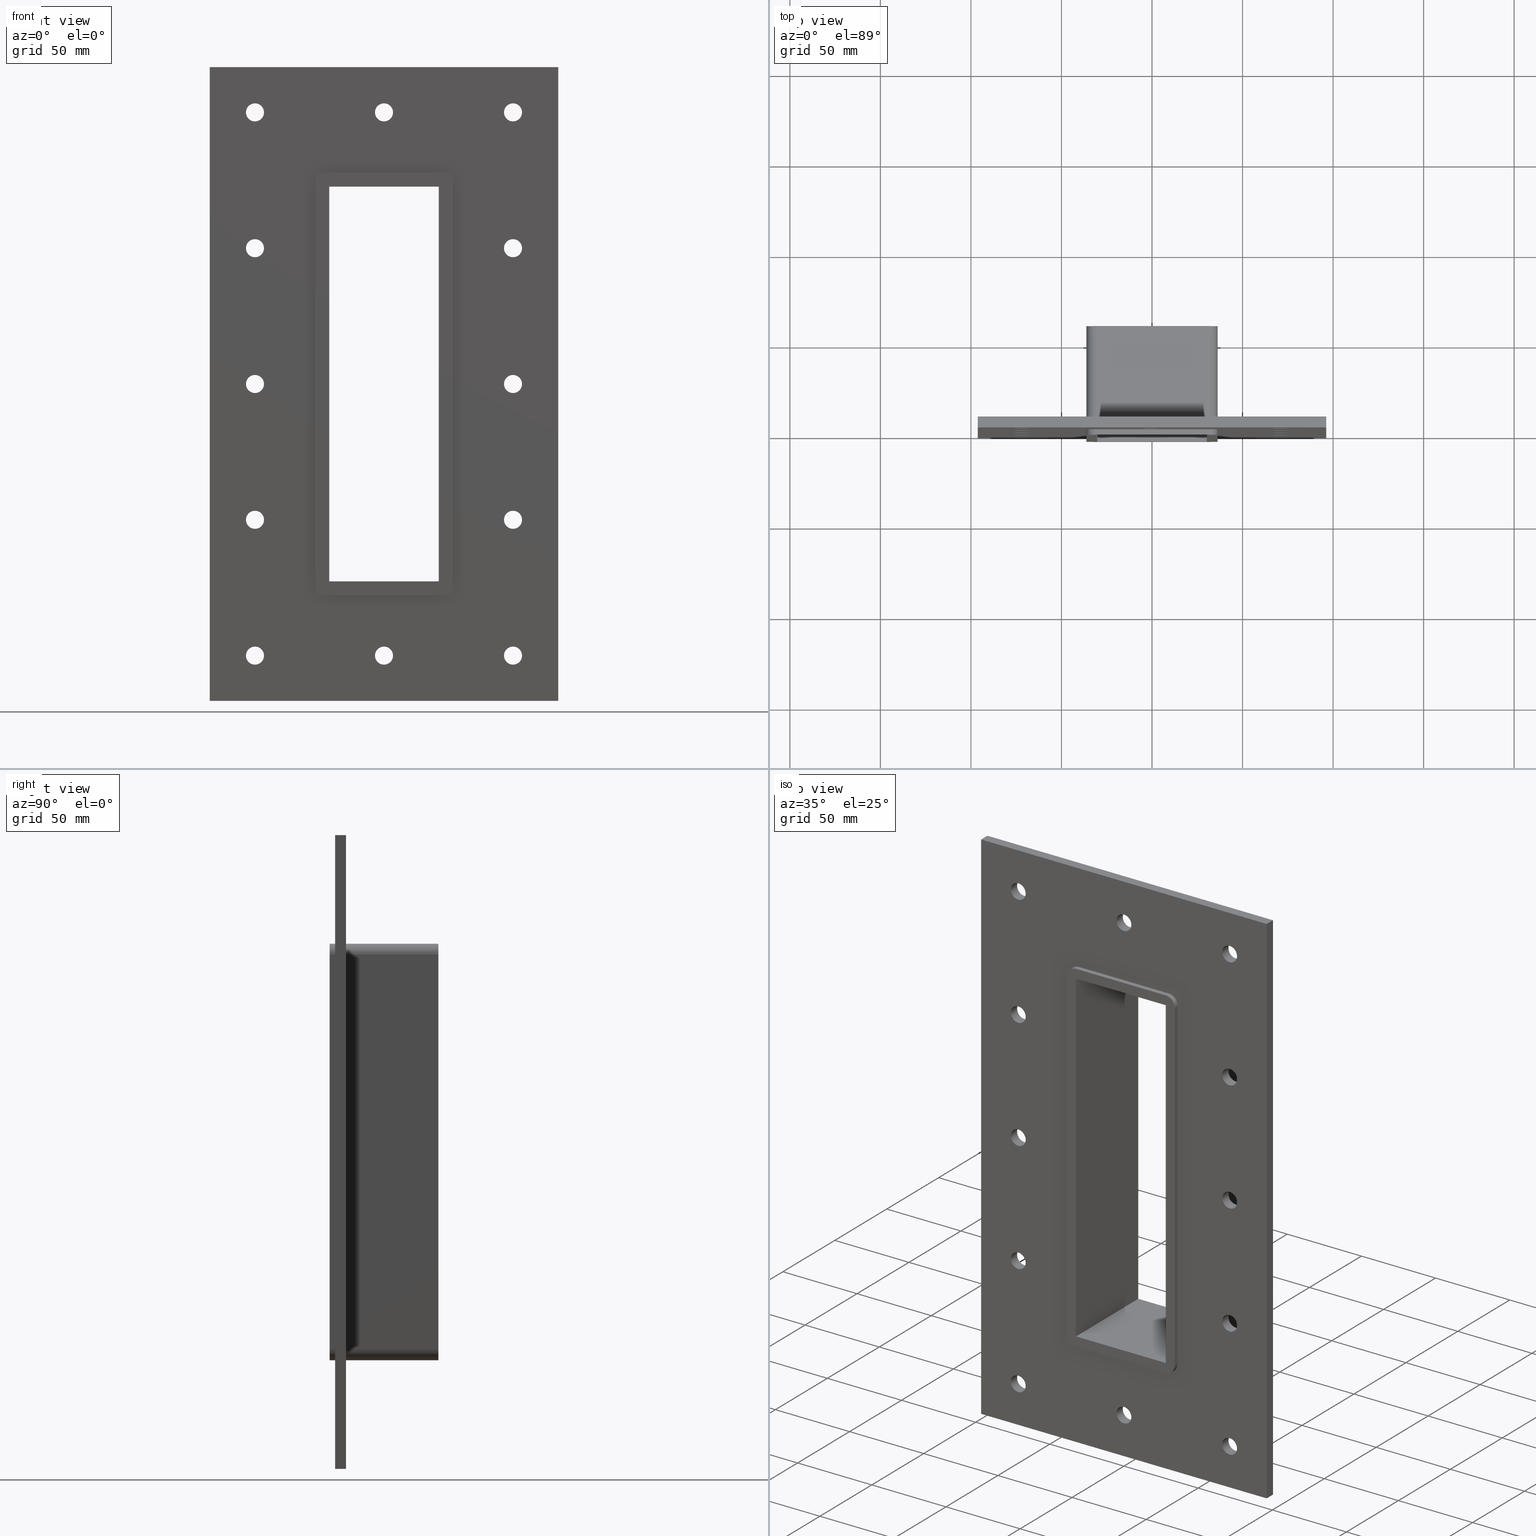
[diagram: canonical four-view strip — front | top / right | iso, engineering-drawing reading convention]
A machine part, canonical four-view strip (front | top / right | iso — engineering-drawing reading convention). The complete STEP part file that produces these views, byte-faithful:
ISO-10303-21;
HEADER;
/****************************************************************
 * Generated by software with PDElib inside                    *
 * PDElib Version v51a, created Wed 11/30/2011                  *
 * ITI Transcendata (http://www.transcendata.com/)              *
 ****************************************************************/
FILE_DESCRIPTION((''),'2;1');
FILE_NAME('L:\\roxtec-se\\Projects\\Ongoing_Projects\\12403 Transit Designer\\Product-data\\Product Data\\Transit designer Cad Generator\\CreatedFiles\\STEP\\GBEX5X1.stp','2015-02-17T15:00:34',(''),(''),'Autodesk Inventor 2013','Autodesk Inventor 2013','');
FILE_SCHEMA(('AUTOMOTIVE_DESIGN { 1 0 10303 214 1 1 1 1 }'));
ENDSEC;
DATA;
#5=APPLICATION_CONTEXT('automotive design');
#6=APPLICATION_PROTOCOL_DEFINITION('International Standard','automotive_design',2001,#5);
#7=PRODUCT_CONTEXT('',#5,'mechanical');
#8=PRODUCT('G B Ex','G B Ex',$,(#7));
#9=PRODUCT_RELATED_PRODUCT_CATEGORY('part',$,(#8));
#10=PRODUCT_DEFINITION_FORMATION('',$,#8);
#11=PRODUCT_DEFINITION_CONTEXT('part definition',#5,'design');
#12=PRODUCT_DEFINITION('',$,#10,#11);
#18=(NAMED_UNIT(*)PLANE_ANGLE_UNIT()SI_UNIT($,.RADIAN.));
#19=DIMENSIONAL_EXPONENTS(0.0,0.0,0.0,0.0,0.0,0.0,0.0);
#20=PLANE_ANGLE_MEASURE_WITH_UNIT(PLANE_ANGLE_MEASURE(0.0174532925),#18);
#24=(CONVERSION_BASED_UNIT('DEGREE',#20)NAMED_UNIT(#19)PLANE_ANGLE_UNIT());
#28=(NAMED_UNIT(*)SI_UNIT($,.STERADIAN.)SOLID_ANGLE_UNIT());
#32=(LENGTH_UNIT()NAMED_UNIT(*)SI_UNIT(.MILLI.,.METRE.));
#34=UNCERTAINTY_MEASURE_WITH_UNIT(LENGTH_MEASURE(0.01),#32,'DISTANCE_ACCURACY_VALUE','');
#36=(GEOMETRIC_REPRESENTATION_CONTEXT(3)GLOBAL_UNCERTAINTY_ASSIGNED_CONTEXT((#34))GLOBAL_UNIT_ASSIGNED_CONTEXT((#24,#28,#32))REPRESENTATION_CONTEXT('None','None'));
#37=AXIS2_PLACEMENT_3D('',#38,#39,#40);
#38=CARTESIAN_POINT('',(0.0,0.0,0.0));
#39=DIRECTION('',(0.0,0.0,1.0));
#40=DIRECTION('',(1.0,0.0,0.0));
#41=SHAPE_REPRESENTATION('',(#37),#36);
#42=PRODUCT_DEFINITION_SHAPE('','',#12);
#43=SHAPE_DEFINITION_REPRESENTATION(#42,#41);
#49=(NAMED_UNIT(*)PLANE_ANGLE_UNIT()SI_UNIT($,.RADIAN.));
#50=DIMENSIONAL_EXPONENTS(0.0,0.0,0.0,0.0,0.0,0.0,0.0);
#51=PLANE_ANGLE_MEASURE_WITH_UNIT(PLANE_ANGLE_MEASURE(0.0174532925),#49);
#55=(CONVERSION_BASED_UNIT('DEGREE',#51)NAMED_UNIT(#50)PLANE_ANGLE_UNIT());
#59=(NAMED_UNIT(*)SI_UNIT($,.STERADIAN.)SOLID_ANGLE_UNIT());
#63=(LENGTH_UNIT()NAMED_UNIT(*)SI_UNIT(.MILLI.,.METRE.));
#65=UNCERTAINTY_MEASURE_WITH_UNIT(LENGTH_MEASURE(0.000001),#63,'DISTANCE_ACCURACY_VALUE','');
#67=(GEOMETRIC_REPRESENTATION_CONTEXT(3)GLOBAL_UNCERTAINTY_ASSIGNED_CONTEXT((#65))GLOBAL_UNIT_ASSIGNED_CONTEXT((#55,#59,#63))REPRESENTATION_CONTEXT('','3D'));
#68=CARTESIAN_POINT('',(-71.250000000000114,403.926045211249,-150.0));
#69=DIRECTION('',(0.0,-1.0,0.0));
#70=DIRECTION('',(1.0,0.0,0.0));
#71=AXIS2_PLACEMENT_3D('',#68,#69,#70);
#72=CYLINDRICAL_SURFACE('',#71,5.0);
#73=CARTESIAN_POINT('',(-76.250000000000114,6.000000000000014,-150.0));
#74=VERTEX_POINT('',#73);
#75=CARTESIAN_POINT('',(-71.250000000000114,6.000000000000014,-150.0));
#76=DIRECTION('',(0.0,-1.0,0.0));
#77=DIRECTION('',(1.0,0.0,0.0));
#78=AXIS2_PLACEMENT_3D('',#75,#76,#77);
#79=CIRCLE('',#78,5.0);
#80=EDGE_CURVE('',#74,#74,#79,.T.);
#81=ORIENTED_EDGE('',*,*,#80,.F.);
#82=EDGE_LOOP('',(#81));
#83=FACE_OUTER_BOUND('',#82,.T.);
#84=CARTESIAN_POINT('',(-66.250000000000114,0.0,-150.0));
#85=VERTEX_POINT('',#84);
#86=CARTESIAN_POINT('',(-71.250000000000114,0.0,-150.0));
#87=DIRECTION('',(0.0,1.0,0.0));
#88=DIRECTION('',(1.0,0.0,0.0));
#89=AXIS2_PLACEMENT_3D('',#86,#87,#88);
#90=CIRCLE('',#89,5.0);
#91=EDGE_CURVE('',#85,#85,#90,.T.);
#92=ORIENTED_EDGE('',*,*,#91,.F.);
#93=EDGE_LOOP('',(#92));
#94=FACE_BOUND('',#93,.T.);
#95=ADVANCED_FACE('',(#83,#94),#72,.F.);
#96=CARTESIAN_POINT('',(71.249999999999886,403.926045211249,-75.0));
#97=DIRECTION('',(0.0,-1.0,0.0));
#98=DIRECTION('',(1.0,0.0,0.0));
#99=AXIS2_PLACEMENT_3D('',#96,#97,#98);
#100=CYLINDRICAL_SURFACE('',#99,5.0);
#101=CARTESIAN_POINT('',(66.249999999999886,6.000000000000014,-75.0));
#102=VERTEX_POINT('',#101);
#103=CARTESIAN_POINT('',(71.249999999999886,6.000000000000014,-75.0));
#104=DIRECTION('',(0.0,-1.0,0.0));
#105=DIRECTION('',(1.0,0.0,0.0));
#106=AXIS2_PLACEMENT_3D('',#103,#104,#105);
#107=CIRCLE('',#106,5.0);
#108=EDGE_CURVE('',#102,#102,#107,.T.);
#109=ORIENTED_EDGE('',*,*,#108,.F.);
#110=EDGE_LOOP('',(#109));
#111=FACE_OUTER_BOUND('',#110,.T.);
#112=CARTESIAN_POINT('',(76.249999999999886,0.0,-75.0));
#113=VERTEX_POINT('',#112);
#114=CARTESIAN_POINT('',(71.249999999999886,0.0,-75.0));
#115=DIRECTION('',(0.0,1.0,0.0));
#116=DIRECTION('',(1.0,0.0,0.0));
#117=AXIS2_PLACEMENT_3D('',#114,#115,#116);
#118=CIRCLE('',#117,5.0);
#119=EDGE_CURVE('',#113,#113,#118,.T.);
#120=ORIENTED_EDGE('',*,*,#119,.F.);
#121=EDGE_LOOP('',(#120));
#122=FACE_BOUND('',#121,.T.);
#123=ADVANCED_FACE('',(#111,#122),#100,.F.);
#124=CARTESIAN_POINT('',(-71.250000000000114,403.926045211249,-75.0));
#125=DIRECTION('',(0.0,-1.0,0.0));
#126=DIRECTION('',(1.0,0.0,0.0));
#127=AXIS2_PLACEMENT_3D('',#124,#125,#126);
#128=CYLINDRICAL_SURFACE('',#127,5.0);
#129=CARTESIAN_POINT('',(-76.250000000000114,6.000000000000014,-75.0));
#130=VERTEX_POINT('',#129);
#131=CARTESIAN_POINT('',(-71.250000000000114,6.000000000000014,-75.0));
#132=DIRECTION('',(0.0,-1.0,0.0));
#133=DIRECTION('',(1.0,0.0,0.0));
#134=AXIS2_PLACEMENT_3D('',#131,#132,#133);
#135=CIRCLE('',#134,5.0);
#136=EDGE_CURVE('',#130,#130,#135,.T.);
#137=ORIENTED_EDGE('',*,*,#136,.F.);
#138=EDGE_LOOP('',(#137));
#139=FACE_OUTER_BOUND('',#138,.T.);
#140=CARTESIAN_POINT('',(-66.250000000000114,0.0,-75.0));
#141=VERTEX_POINT('',#140);
#142=CARTESIAN_POINT('',(-71.250000000000114,0.0,-75.0));
#143=DIRECTION('',(0.0,1.0,0.0));
#144=DIRECTION('',(1.0,0.0,0.0));
#145=AXIS2_PLACEMENT_3D('',#142,#143,#144);
#146=CIRCLE('',#145,5.0);
#147=EDGE_CURVE('',#141,#141,#146,.T.);
#148=ORIENTED_EDGE('',*,*,#147,.F.);
#149=EDGE_LOOP('',(#148));
#150=FACE_BOUND('',#149,.T.);
#151=ADVANCED_FACE('',(#139,#150),#128,.F.);
#152=CARTESIAN_POINT('',(71.249999999999886,403.926045211249,0.0));
#153=DIRECTION('',(0.0,-1.0,0.0));
#154=DIRECTION('',(1.0,0.0,0.0));
#155=AXIS2_PLACEMENT_3D('',#152,#153,#154);
#156=CYLINDRICAL_SURFACE('',#155,5.0);
#157=CARTESIAN_POINT('',(66.249999999999886,6.000000000000014,0.0));
#158=VERTEX_POINT('',#157);
#159=CARTESIAN_POINT('',(71.249999999999886,6.000000000000014,0.0));
#160=DIRECTION('',(0.0,-1.0,0.0));
#161=DIRECTION('',(1.0,0.0,0.0));
#162=AXIS2_PLACEMENT_3D('',#159,#160,#161);
#163=CIRCLE('',#162,5.0);
#164=EDGE_CURVE('',#158,#158,#163,.T.);
#165=ORIENTED_EDGE('',*,*,#164,.F.);
#166=EDGE_LOOP('',(#165));
#167=FACE_OUTER_BOUND('',#166,.T.);
#168=CARTESIAN_POINT('',(76.249999999999886,0.0,0.0));
#169=VERTEX_POINT('',#168);
#170=CARTESIAN_POINT('',(71.249999999999886,0.0,0.0));
#171=DIRECTION('',(0.0,1.0,0.0));
#172=DIRECTION('',(1.0,0.0,0.0));
#173=AXIS2_PLACEMENT_3D('',#170,#171,#172);
#174=CIRCLE('',#173,5.0);
#175=EDGE_CURVE('',#169,#169,#174,.T.);
#176=ORIENTED_EDGE('',*,*,#175,.F.);
#177=EDGE_LOOP('',(#176));
#178=FACE_BOUND('',#177,.T.);
#179=ADVANCED_FACE('',(#167,#178),#156,.F.);
#180=CARTESIAN_POINT('',(-71.250000000000114,403.926045211249,0.0));
#181=DIRECTION('',(0.0,-1.0,0.0));
#182=DIRECTION('',(1.0,0.0,0.0));
#183=AXIS2_PLACEMENT_3D('',#180,#181,#182);
#184=CYLINDRICAL_SURFACE('',#183,5.0);
#185=CARTESIAN_POINT('',(-76.250000000000114,6.000000000000014,0.0));
#186=VERTEX_POINT('',#185);
#187=CARTESIAN_POINT('',(-71.250000000000114,6.000000000000014,0.0));
#188=DIRECTION('',(0.0,-1.0,0.0));
#189=DIRECTION('',(1.0,0.0,0.0));
#190=AXIS2_PLACEMENT_3D('',#187,#188,#189);
#191=CIRCLE('',#190,5.0);
#192=EDGE_CURVE('',#186,#186,#191,.T.);
#193=ORIENTED_EDGE('',*,*,#192,.F.);
#194=EDGE_LOOP('',(#193));
#195=FACE_OUTER_BOUND('',#194,.T.);
#196=CARTESIAN_POINT('',(-66.250000000000114,0.0,0.0));
#197=VERTEX_POINT('',#196);
#198=CARTESIAN_POINT('',(-71.250000000000114,0.0,0.0));
#199=DIRECTION('',(0.0,1.0,0.0));
#200=DIRECTION('',(1.0,0.0,0.0));
#201=AXIS2_PLACEMENT_3D('',#198,#199,#200);
#202=CIRCLE('',#201,5.0);
#203=EDGE_CURVE('',#197,#197,#202,.T.);
#204=ORIENTED_EDGE('',*,*,#203,.F.);
#205=EDGE_LOOP('',(#204));
#206=FACE_BOUND('',#205,.T.);
#207=ADVANCED_FACE('',(#195,#206),#184,.F.);
#208=CARTESIAN_POINT('',(71.249999999999886,403.926045211249,75.0));
#209=DIRECTION('',(0.0,-1.0,0.0));
#210=DIRECTION('',(1.0,0.0,0.0));
#211=AXIS2_PLACEMENT_3D('',#208,#209,#210);
#212=CYLINDRICAL_SURFACE('',#211,5.0);
#213=CARTESIAN_POINT('',(66.249999999999886,6.000000000000014,75.0));
#214=VERTEX_POINT('',#213);
#215=CARTESIAN_POINT('',(71.249999999999886,6.000000000000014,75.0));
#216=DIRECTION('',(0.0,-1.0,0.0));
#217=DIRECTION('',(1.0,0.0,0.0));
#218=AXIS2_PLACEMENT_3D('',#215,#216,#217);
#219=CIRCLE('',#218,5.0);
#220=EDGE_CURVE('',#214,#214,#219,.T.);
#221=ORIENTED_EDGE('',*,*,#220,.F.);
#222=EDGE_LOOP('',(#221));
#223=FACE_OUTER_BOUND('',#222,.T.);
#224=CARTESIAN_POINT('',(76.249999999999886,0.0,75.0));
#225=VERTEX_POINT('',#224);
#226=CARTESIAN_POINT('',(71.249999999999886,0.0,75.0));
#227=DIRECTION('',(0.0,1.0,0.0));
#228=DIRECTION('',(1.0,0.0,0.0));
#229=AXIS2_PLACEMENT_3D('',#226,#227,#228);
#230=CIRCLE('',#229,5.0);
#231=EDGE_CURVE('',#225,#225,#230,.T.);
#232=ORIENTED_EDGE('',*,*,#231,.F.);
#233=EDGE_LOOP('',(#232));
#234=FACE_BOUND('',#233,.T.);
#235=ADVANCED_FACE('',(#223,#234),#212,.F.);
#236=CARTESIAN_POINT('',(-71.250000000000114,403.926045211249,75.0));
#237=DIRECTION('',(0.0,-1.0,0.0));
#238=DIRECTION('',(1.0,0.0,0.0));
#239=AXIS2_PLACEMENT_3D('',#236,#237,#238);
#240=CYLINDRICAL_SURFACE('',#239,5.0);
#241=CARTESIAN_POINT('',(-76.250000000000114,6.000000000000014,75.0));
#242=VERTEX_POINT('',#241);
#243=CARTESIAN_POINT('',(-71.250000000000114,6.000000000000014,75.0));
#244=DIRECTION('',(0.0,-1.0,0.0));
#245=DIRECTION('',(1.0,0.0,0.0));
#246=AXIS2_PLACEMENT_3D('',#243,#244,#245);
#247=CIRCLE('',#246,5.0);
#248=EDGE_CURVE('',#242,#242,#247,.T.);
#249=ORIENTED_EDGE('',*,*,#248,.F.);
#250=EDGE_LOOP('',(#249));
#251=FACE_OUTER_BOUND('',#250,.T.);
#252=CARTESIAN_POINT('',(-66.250000000000114,0.0,75.0));
#253=VERTEX_POINT('',#252);
#254=CARTESIAN_POINT('',(-71.250000000000114,0.0,75.0));
#255=DIRECTION('',(0.0,1.0,0.0));
#256=DIRECTION('',(1.0,0.0,0.0));
#257=AXIS2_PLACEMENT_3D('',#254,#255,#256);
#258=CIRCLE('',#257,5.0);
#259=EDGE_CURVE('',#253,#253,#258,.T.);
#260=ORIENTED_EDGE('',*,*,#259,.F.);
#261=EDGE_LOOP('',(#260));
#262=FACE_BOUND('',#261,.T.);
#263=ADVANCED_FACE('',(#251,#262),#240,.F.);
#264=CARTESIAN_POINT('',(-1.154632E-013,403.926045211249,150.0));
#265=DIRECTION('',(0.0,-1.0,0.0));
#266=DIRECTION('',(1.0,0.0,0.0));
#267=AXIS2_PLACEMENT_3D('',#264,#265,#266);
#268=CYLINDRICAL_SURFACE('',#267,5.0);
#269=CARTESIAN_POINT('',(-5.000000000000116,6.000000000000014,150.0));
#270=VERTEX_POINT('',#269);
#271=CARTESIAN_POINT('',(-1.154632E-013,6.000000000000014,150.0));
#272=DIRECTION('',(0.0,-1.0,0.0));
#273=DIRECTION('',(1.0,0.0,0.0));
#274=AXIS2_PLACEMENT_3D('',#271,#272,#273);
#275=CIRCLE('',#274,5.0);
#276=EDGE_CURVE('',#270,#270,#275,.T.);
#277=ORIENTED_EDGE('',*,*,#276,.F.);
#278=EDGE_LOOP('',(#277));
#279=FACE_OUTER_BOUND('',#278,.T.);
#280=CARTESIAN_POINT('',(4.999999999999885,0.0,150.0));
#281=VERTEX_POINT('',#280);
#282=CARTESIAN_POINT('',(-1.154632E-013,0.0,150.0));
#283=DIRECTION('',(0.0,1.0,0.0));
#284=DIRECTION('',(1.0,0.0,0.0));
#285=AXIS2_PLACEMENT_3D('',#282,#283,#284);
#286=CIRCLE('',#285,5.0);
#287=EDGE_CURVE('',#281,#281,#286,.T.);
#288=ORIENTED_EDGE('',*,*,#287,.F.);
#289=EDGE_LOOP('',(#288));
#290=FACE_BOUND('',#289,.T.);
#291=ADVANCED_FACE('',(#279,#290),#268,.F.);
#292=CARTESIAN_POINT('',(-1.154632E-013,403.926045211249,-150.0));
#293=DIRECTION('',(0.0,-1.0,0.0));
#294=DIRECTION('',(1.0,0.0,0.0));
#295=AXIS2_PLACEMENT_3D('',#292,#293,#294);
#296=CYLINDRICAL_SURFACE('',#295,5.0);
#297=CARTESIAN_POINT('',(-5.000000000000116,6.000000000000014,-150.0));
#298=VERTEX_POINT('',#297);
#299=CARTESIAN_POINT('',(-1.154632E-013,6.000000000000014,-150.0));
#300=DIRECTION('',(0.0,-1.0,0.0));
#301=DIRECTION('',(1.0,0.0,0.0));
#302=AXIS2_PLACEMENT_3D('',#299,#300,#301);
#303=CIRCLE('',#302,5.0);
#304=EDGE_CURVE('',#298,#298,#303,.T.);
#305=ORIENTED_EDGE('',*,*,#304,.F.);
#306=EDGE_LOOP('',(#305));
#307=FACE_OUTER_BOUND('',#306,.T.);
#308=CARTESIAN_POINT('',(4.999999999999885,0.0,-150.0));
#309=VERTEX_POINT('',#308);
#310=CARTESIAN_POINT('',(-1.154632E-013,0.0,-150.0));
#311=DIRECTION('',(0.0,1.0,0.0));
#312=DIRECTION('',(1.0,0.0,0.0));
#313=AXIS2_PLACEMENT_3D('',#310,#311,#312);
#314=CIRCLE('',#313,5.0);
#315=EDGE_CURVE('',#309,#309,#314,.T.);
#316=ORIENTED_EDGE('',*,*,#315,.F.);
#317=EDGE_LOOP('',(#316));
#318=FACE_BOUND('',#317,.T.);
#319=ADVANCED_FACE('',(#307,#318),#296,.F.);
#320=CARTESIAN_POINT('',(71.249999999999886,403.926045211249,-150.0));
#321=DIRECTION('',(0.0,-1.0,0.0));
#322=DIRECTION('',(1.0,0.0,0.0));
#323=AXIS2_PLACEMENT_3D('',#320,#321,#322);
#324=CYLINDRICAL_SURFACE('',#323,5.0);
#325=CARTESIAN_POINT('',(66.249999999999886,6.000000000000014,-150.0));
#326=VERTEX_POINT('',#325);
#327=CARTESIAN_POINT('',(71.249999999999886,6.000000000000014,-150.0));
#328=DIRECTION('',(0.0,-1.0,0.0));
#329=DIRECTION('',(1.0,0.0,0.0));
#330=AXIS2_PLACEMENT_3D('',#327,#328,#329);
#331=CIRCLE('',#330,5.0);
#332=EDGE_CURVE('',#326,#326,#331,.T.);
#333=ORIENTED_EDGE('',*,*,#332,.F.);
#334=EDGE_LOOP('',(#333));
#335=FACE_OUTER_BOUND('',#334,.T.);
#336=CARTESIAN_POINT('',(76.249999999999886,0.0,-150.0));
#337=VERTEX_POINT('',#336);
#338=CARTESIAN_POINT('',(71.249999999999886,0.0,-150.0));
#339=DIRECTION('',(0.0,1.0,0.0));
#340=DIRECTION('',(1.0,0.0,0.0));
#341=AXIS2_PLACEMENT_3D('',#338,#339,#340);
#342=CIRCLE('',#341,5.0);
#343=EDGE_CURVE('',#337,#337,#342,.T.);
#344=ORIENTED_EDGE('',*,*,#343,.F.);
#345=EDGE_LOOP('',(#344));
#346=FACE_BOUND('',#345,.T.);
#347=ADVANCED_FACE('',(#335,#346),#324,.F.);
#348=CARTESIAN_POINT('',(-71.250000000000114,403.926045211249,150.0));
#349=DIRECTION('',(0.0,-1.0,0.0));
#350=DIRECTION('',(1.0,0.0,0.0));
#351=AXIS2_PLACEMENT_3D('',#348,#349,#350);
#352=CYLINDRICAL_SURFACE('',#351,5.0);
#353=CARTESIAN_POINT('',(-76.250000000000114,6.000000000000014,150.0));
#354=VERTEX_POINT('',#353);
#355=CARTESIAN_POINT('',(-71.250000000000114,6.000000000000014,150.0));
#356=DIRECTION('',(0.0,-1.0,0.0));
#357=DIRECTION('',(1.0,0.0,0.0));
#358=AXIS2_PLACEMENT_3D('',#355,#356,#357);
#359=CIRCLE('',#358,5.0);
#360=EDGE_CURVE('',#354,#354,#359,.T.);
#361=ORIENTED_EDGE('',*,*,#360,.F.);
#362=EDGE_LOOP('',(#361));
#363=FACE_OUTER_BOUND('',#362,.T.);
#364=CARTESIAN_POINT('',(-66.250000000000114,0.0,150.0));
#365=VERTEX_POINT('',#364);
#366=CARTESIAN_POINT('',(-71.250000000000114,0.0,150.0));
#367=DIRECTION('',(0.0,1.0,0.0));
#368=DIRECTION('',(1.0,0.0,0.0));
#369=AXIS2_PLACEMENT_3D('',#366,#367,#368);
#370=CIRCLE('',#369,5.0);
#371=EDGE_CURVE('',#365,#365,#370,.T.);
#372=ORIENTED_EDGE('',*,*,#371,.F.);
#373=EDGE_LOOP('',(#372));
#374=FACE_BOUND('',#373,.T.);
#375=ADVANCED_FACE('',(#363,#374),#352,.F.);
#376=CARTESIAN_POINT('',(71.249999999999886,403.926045211249,150.0));
#377=DIRECTION('',(0.0,-1.0,0.0));
#378=DIRECTION('',(1.0,0.0,0.0));
#379=AXIS2_PLACEMENT_3D('',#376,#377,#378);
#380=CYLINDRICAL_SURFACE('',#379,5.0);
#381=CARTESIAN_POINT('',(66.249999999999886,6.000000000000014,150.0));
#382=VERTEX_POINT('',#381);
#383=CARTESIAN_POINT('',(71.249999999999886,6.000000000000014,150.0));
#384=DIRECTION('',(0.0,-1.0,0.0));
#385=DIRECTION('',(1.0,0.0,0.0));
#386=AXIS2_PLACEMENT_3D('',#383,#384,#385);
#387=CIRCLE('',#386,5.0);
#388=EDGE_CURVE('',#382,#382,#387,.T.);
#389=ORIENTED_EDGE('',*,*,#388,.F.);
#390=EDGE_LOOP('',(#389));
#391=FACE_OUTER_BOUND('',#390,.T.);
#392=CARTESIAN_POINT('',(76.249999999999886,0.0,150.0));
#393=VERTEX_POINT('',#392);
#394=CARTESIAN_POINT('',(71.249999999999886,0.0,150.0));
#395=DIRECTION('',(0.0,1.0,0.0));
#396=DIRECTION('',(1.0,0.0,0.0));
#397=AXIS2_PLACEMENT_3D('',#394,#395,#396);
#398=CIRCLE('',#397,5.0);
#399=EDGE_CURVE('',#393,#393,#398,.T.);
#400=ORIENTED_EDGE('',*,*,#399,.F.);
#401=EDGE_LOOP('',(#400));
#402=FACE_BOUND('',#401,.T.);
#403=ADVANCED_FACE('',(#391,#402),#380,.F.);
#404=CARTESIAN_POINT('',(0.0,6.000000000000001,0.0));
#405=DIRECTION('',(0.0,1.0,0.0));
#406=DIRECTION('',(0.0,0.0,1.0));
#407=AXIS2_PLACEMENT_3D('',#404,#405,#406);
#408=PLANE('',#407);
#409=CARTESIAN_POINT('',(-96.25,6.000000000000001,175.0));
#410=VERTEX_POINT('',#409);
#411=CARTESIAN_POINT('',(96.25,6.000000000000001,175.0));
#412=VERTEX_POINT('',#411);
#413=CARTESIAN_POINT('',(-96.25,6.000000000000001,175.0));
#414=DIRECTION('',(1.0,0.0,0.0));
#415=VECTOR('',#414,192.5);
#416=LINE('',#413,#415);
#417=EDGE_CURVE('',#410,#412,#416,.T.);
#418=ORIENTED_EDGE('',*,*,#417,.T.);
#419=CARTESIAN_POINT('',(96.25,6.000000000000001,-175.0));
#420=VERTEX_POINT('',#419);
#421=CARTESIAN_POINT('',(96.25,6.000000000000001,175.0));
#422=DIRECTION('',(0.0,0.0,-1.0));
#423=VECTOR('',#422,350.0);
#424=LINE('',#421,#423);
#425=EDGE_CURVE('',#412,#420,#424,.T.);
#426=ORIENTED_EDGE('',*,*,#425,.T.);
#427=CARTESIAN_POINT('',(-96.25,6.000000000000001,-175.0));
#428=VERTEX_POINT('',#427);
#429=CARTESIAN_POINT('',(96.25,6.000000000000001,-175.0));
#430=DIRECTION('',(-1.0,0.0,0.0));
#431=VECTOR('',#430,192.5);
#432=LINE('',#429,#431);
#433=EDGE_CURVE('',#420,#428,#432,.T.);
#434=ORIENTED_EDGE('',*,*,#433,.T.);
#435=CARTESIAN_POINT('',(-96.25,6.000000000000001,-175.0));
#436=DIRECTION('',(0.0,0.0,1.0));
#437=VECTOR('',#436,350.0);
#438=LINE('',#435,#437);
#439=EDGE_CURVE('',#428,#410,#438,.T.);
#440=ORIENTED_EDGE('',*,*,#439,.T.);
#441=EDGE_LOOP('',(#418,#426,#434,#440));
#442=FACE_OUTER_BOUND('',#441,.T.);
#443=ORIENTED_EDGE('',*,*,#80,.T.);
#444=EDGE_LOOP('',(#443));
#445=FACE_BOUND('',#444,.T.);
#446=ORIENTED_EDGE('',*,*,#108,.T.);
#447=EDGE_LOOP('',(#446));
#448=FACE_BOUND('',#447,.T.);
#449=ORIENTED_EDGE('',*,*,#136,.T.);
#450=EDGE_LOOP('',(#449));
#451=FACE_BOUND('',#450,.T.);
#452=ORIENTED_EDGE('',*,*,#164,.T.);
#453=EDGE_LOOP('',(#452));
#454=FACE_BOUND('',#453,.T.);
#455=ORIENTED_EDGE('',*,*,#192,.T.);
#456=EDGE_LOOP('',(#455));
#457=FACE_BOUND('',#456,.T.);
#458=ORIENTED_EDGE('',*,*,#220,.T.);
#459=EDGE_LOOP('',(#458));
#460=FACE_BOUND('',#459,.T.);
#461=ORIENTED_EDGE('',*,*,#248,.T.);
#462=EDGE_LOOP('',(#461));
#463=FACE_BOUND('',#462,.T.);
#464=ORIENTED_EDGE('',*,*,#276,.T.);
#465=EDGE_LOOP('',(#464));
#466=FACE_BOUND('',#465,.T.);
#467=ORIENTED_EDGE('',*,*,#304,.T.);
#468=EDGE_LOOP('',(#467));
#469=FACE_BOUND('',#468,.T.);
#470=ORIENTED_EDGE('',*,*,#332,.T.);
#471=EDGE_LOOP('',(#470));
#472=FACE_BOUND('',#471,.T.);
#473=ORIENTED_EDGE('',*,*,#360,.T.);
#474=EDGE_LOOP('',(#473));
#475=FACE_BOUND('',#474,.T.);
#476=ORIENTED_EDGE('',*,*,#388,.T.);
#477=EDGE_LOOP('',(#476));
#478=FACE_BOUND('',#477,.T.);
#479=CARTESIAN_POINT('',(-30.250000000000004,6.000000000000001,-115.0));
#480=VERTEX_POINT('',#479);
#481=CARTESIAN_POINT('',(-36.250000000000007,6.000000000000001,-108.99999999999999));
#482=VERTEX_POINT('',#481);
#483=CARTESIAN_POINT('',(-30.250000000000004,6.000000000000001,-108.99999999999999));
#484=DIRECTION('',(0.0,1.0,0.0));
#485=DIRECTION('',(-0.707106781186546,0.0,-0.707106781186549));
#486=AXIS2_PLACEMENT_3D('',#483,#484,#485);
#487=CIRCLE('',#486,6.000000000000001);
#488=EDGE_CURVE('',#480,#482,#487,.T.);
#489=ORIENTED_EDGE('',*,*,#488,.F.);
#490=CARTESIAN_POINT('',(30.250000000000004,6.000000000000001,-115.0));
#491=VERTEX_POINT('',#490);
#492=CARTESIAN_POINT('',(30.250000000000007,6.000000000000001,-115.0));
#493=DIRECTION('',(-1.0,0.0,0.0));
#494=VECTOR('',#493,60.5);
#495=LINE('',#492,#494);
#496=EDGE_CURVE('',#491,#480,#495,.T.);
#497=ORIENTED_EDGE('',*,*,#496,.F.);
#498=CARTESIAN_POINT('',(36.250000000000007,6.000000000000001,-108.99999999999999));
#499=VERTEX_POINT('',#498);
#500=CARTESIAN_POINT('',(30.250000000000004,6.000000000000001,-108.99999999999999));
#501=DIRECTION('',(0.0,1.0,0.0));
#502=DIRECTION('',(0.707106781186546,0.0,-0.707106781186549));
#503=AXIS2_PLACEMENT_3D('',#500,#501,#502);
#504=CIRCLE('',#503,6.000000000000001);
#505=EDGE_CURVE('',#499,#491,#504,.T.);
#506=ORIENTED_EDGE('',*,*,#505,.F.);
#507=CARTESIAN_POINT('',(36.250000000000007,6.000000000000001,109.0));
#508=VERTEX_POINT('',#507);
#509=CARTESIAN_POINT('',(36.250000000000007,6.000000000000001,109.0));
#510=DIRECTION('',(0.0,0.0,-1.0));
#511=VECTOR('',#510,218.0);
#512=LINE('',#509,#511);
#513=EDGE_CURVE('',#508,#499,#512,.T.);
#514=ORIENTED_EDGE('',*,*,#513,.F.);
#515=CARTESIAN_POINT('',(30.250000000000004,6.000000000000001,115.0));
#516=VERTEX_POINT('',#515);
#517=CARTESIAN_POINT('',(30.250000000000004,6.000000000000001,109.0));
#518=DIRECTION('',(0.0,1.0,0.0));
#519=DIRECTION('',(0.707106781186548,0.0,0.707106781186547));
#520=AXIS2_PLACEMENT_3D('',#517,#518,#519);
#521=CIRCLE('',#520,6.0);
#522=EDGE_CURVE('',#516,#508,#521,.T.);
#523=ORIENTED_EDGE('',*,*,#522,.F.);
#524=CARTESIAN_POINT('',(-30.250000000000004,6.000000000000001,115.0));
#525=VERTEX_POINT('',#524);
#526=CARTESIAN_POINT('',(-30.250000000000007,6.000000000000001,115.0));
#527=DIRECTION('',(1.0,0.0,0.0));
#528=VECTOR('',#527,60.5);
#529=LINE('',#526,#528);
#530=EDGE_CURVE('',#525,#516,#529,.T.);
#531=ORIENTED_EDGE('',*,*,#530,.F.);
#532=CARTESIAN_POINT('',(-36.250000000000007,6.000000000000001,108.99999999999999));
#533=VERTEX_POINT('',#532);
#534=CARTESIAN_POINT('',(-30.250000000000004,6.000000000000001,108.99999999999999));
#535=DIRECTION('',(0.0,1.0,0.0));
#536=DIRECTION('',(-0.707106781186546,0.0,0.707106781186549));
#537=AXIS2_PLACEMENT_3D('',#534,#535,#536);
#538=CIRCLE('',#537,6.000000000000001);
#539=EDGE_CURVE('',#533,#525,#538,.T.);
#540=ORIENTED_EDGE('',*,*,#539,.F.);
#541=CARTESIAN_POINT('',(-36.250000000000007,6.000000000000001,-108.99999999999999));
#542=DIRECTION('',(0.0,0.0,1.0));
#543=VECTOR('',#542,218.0);
#544=LINE('',#541,#543);
#545=EDGE_CURVE('',#482,#533,#544,.T.);
#546=ORIENTED_EDGE('',*,*,#545,.F.);
#547=EDGE_LOOP('',(#489,#497,#506,#514,#523,#531,#540,#546));
#548=FACE_BOUND('',#547,.T.);
#549=ADVANCED_FACE('',(#442,#445,#448,#451,#454,#457,#460,#463,#466,#469,#472,#475,#478,#548),#408,.T.);
#550=CARTESIAN_POINT('',(0.0,0.0,0.0));
#551=DIRECTION('',(0.0,1.0,0.0));
#552=DIRECTION('',(0.0,0.0,1.0));
#553=AXIS2_PLACEMENT_3D('',#550,#551,#552);
#554=PLANE('',#553);
#555=CARTESIAN_POINT('',(-96.25,0.0,175.0));
#556=VERTEX_POINT('',#555);
#557=CARTESIAN_POINT('',(96.25,0.0,175.0));
#558=VERTEX_POINT('',#557);
#559=CARTESIAN_POINT('',(-96.25,0.0,175.0));
#560=DIRECTION('',(1.0,0.0,0.0));
#561=VECTOR('',#560,192.5);
#562=LINE('',#559,#561);
#563=EDGE_CURVE('',#556,#558,#562,.T.);
#564=ORIENTED_EDGE('',*,*,#563,.F.);
#565=CARTESIAN_POINT('',(-96.25,0.0,-175.0));
#566=VERTEX_POINT('',#565);
#567=CARTESIAN_POINT('',(-96.25,0.0,-175.0));
#568=DIRECTION('',(0.0,0.0,1.0));
#569=VECTOR('',#568,350.0);
#570=LINE('',#567,#569);
#571=EDGE_CURVE('',#566,#556,#570,.T.);
#572=ORIENTED_EDGE('',*,*,#571,.F.);
#573=CARTESIAN_POINT('',(96.25,0.0,-175.0));
#574=VERTEX_POINT('',#573);
#575=CARTESIAN_POINT('',(96.25,0.0,-175.0));
#576=DIRECTION('',(-1.0,0.0,0.0));
#577=VECTOR('',#576,192.5);
#578=LINE('',#575,#577);
#579=EDGE_CURVE('',#574,#566,#578,.T.);
#580=ORIENTED_EDGE('',*,*,#579,.F.);
#581=CARTESIAN_POINT('',(96.25,0.0,175.0));
#582=DIRECTION('',(0.0,0.0,-1.0));
#583=VECTOR('',#582,350.0);
#584=LINE('',#581,#583);
#585=EDGE_CURVE('',#558,#574,#584,.T.);
#586=ORIENTED_EDGE('',*,*,#585,.F.);
#587=EDGE_LOOP('',(#564,#572,#580,#586));
#588=FACE_OUTER_BOUND('',#587,.T.);
#589=ORIENTED_EDGE('',*,*,#91,.T.);
#590=EDGE_LOOP('',(#589));
#591=FACE_BOUND('',#590,.T.);
#592=ORIENTED_EDGE('',*,*,#119,.T.);
#593=EDGE_LOOP('',(#592));
#594=FACE_BOUND('',#593,.T.);
#595=ORIENTED_EDGE('',*,*,#147,.T.);
#596=EDGE_LOOP('',(#595));
#597=FACE_BOUND('',#596,.T.);
#598=ORIENTED_EDGE('',*,*,#175,.T.);
#599=EDGE_LOOP('',(#598));
#600=FACE_BOUND('',#599,.T.);
#601=ORIENTED_EDGE('',*,*,#203,.T.);
#602=EDGE_LOOP('',(#601));
#603=FACE_BOUND('',#602,.T.);
#604=ORIENTED_EDGE('',*,*,#231,.T.);
#605=EDGE_LOOP('',(#604));
#606=FACE_BOUND('',#605,.T.);
#607=ORIENTED_EDGE('',*,*,#259,.T.);
#608=EDGE_LOOP('',(#607));
#609=FACE_BOUND('',#608,.T.);
#610=ORIENTED_EDGE('',*,*,#287,.T.);
#611=EDGE_LOOP('',(#610));
#612=FACE_BOUND('',#611,.T.);
#613=ORIENTED_EDGE('',*,*,#315,.T.);
#614=EDGE_LOOP('',(#613));
#615=FACE_BOUND('',#614,.T.);
#616=ORIENTED_EDGE('',*,*,#343,.T.);
#617=EDGE_LOOP('',(#616));
#618=FACE_BOUND('',#617,.T.);
#619=ORIENTED_EDGE('',*,*,#371,.T.);
#620=EDGE_LOOP('',(#619));
#621=FACE_BOUND('',#620,.T.);
#622=ORIENTED_EDGE('',*,*,#399,.T.);
#623=EDGE_LOOP('',(#622));
#624=FACE_BOUND('',#623,.T.);
#625=CARTESIAN_POINT('',(-36.250000000000007,0.0,-108.99999999999999));
#626=VERTEX_POINT('',#625);
#627=CARTESIAN_POINT('',(-30.250000000000004,0.0,-115.0));
#628=VERTEX_POINT('',#627);
#629=CARTESIAN_POINT('',(-30.250000000000004,0.0,-108.99999999999999));
#630=DIRECTION('',(0.0,-1.0,0.0));
#631=DIRECTION('',(-0.707106781186546,0.0,-0.707106781186549));
#632=AXIS2_PLACEMENT_3D('',#629,#630,#631);
#633=CIRCLE('',#632,6.000000000000001);
#634=EDGE_CURVE('',#626,#628,#633,.T.);
#635=ORIENTED_EDGE('',*,*,#634,.F.);
#636=CARTESIAN_POINT('',(-36.250000000000007,0.0,108.99999999999999));
#637=VERTEX_POINT('',#636);
#638=CARTESIAN_POINT('',(-36.250000000000007,0.0,109.0));
#639=DIRECTION('',(0.0,0.0,-1.0));
#640=VECTOR('',#639,218.0);
#641=LINE('',#638,#640);
#642=EDGE_CURVE('',#637,#626,#641,.T.);
#643=ORIENTED_EDGE('',*,*,#642,.F.);
#644=CARTESIAN_POINT('',(-30.250000000000004,0.0,115.0));
#645=VERTEX_POINT('',#644);
#646=CARTESIAN_POINT('',(-30.250000000000004,0.0,108.99999999999999));
#647=DIRECTION('',(0.0,-1.0,0.0));
#648=DIRECTION('',(-0.707106781186546,0.0,0.707106781186549));
#649=AXIS2_PLACEMENT_3D('',#646,#647,#648);
#650=CIRCLE('',#649,6.000000000000001);
#651=EDGE_CURVE('',#645,#637,#650,.T.);
#652=ORIENTED_EDGE('',*,*,#651,.F.);
#653=CARTESIAN_POINT('',(30.250000000000004,0.0,115.0));
#654=VERTEX_POINT('',#653);
#655=CARTESIAN_POINT('',(30.249999999999996,0.0,115.0));
#656=DIRECTION('',(-1.0,0.0,0.0));
#657=VECTOR('',#656,60.5);
#658=LINE('',#655,#657);
#659=EDGE_CURVE('',#654,#645,#658,.T.);
#660=ORIENTED_EDGE('',*,*,#659,.F.);
#661=CARTESIAN_POINT('',(36.250000000000007,0.0,109.0));
#662=VERTEX_POINT('',#661);
#663=CARTESIAN_POINT('',(30.250000000000004,0.0,109.0));
#664=DIRECTION('',(0.0,-1.0,0.0));
#665=DIRECTION('',(0.707106781186548,0.0,0.707106781186547));
#666=AXIS2_PLACEMENT_3D('',#663,#664,#665);
#667=CIRCLE('',#666,6.0);
#668=EDGE_CURVE('',#662,#654,#667,.T.);
#669=ORIENTED_EDGE('',*,*,#668,.F.);
#670=CARTESIAN_POINT('',(36.250000000000007,0.0,-108.99999999999999));
#671=VERTEX_POINT('',#670);
#672=CARTESIAN_POINT('',(36.250000000000007,0.0,-109.0));
#673=DIRECTION('',(0.0,0.0,1.0));
#674=VECTOR('',#673,218.0);
#675=LINE('',#672,#674);
#676=EDGE_CURVE('',#671,#662,#675,.T.);
#677=ORIENTED_EDGE('',*,*,#676,.F.);
#678=CARTESIAN_POINT('',(30.250000000000004,0.0,-115.0));
#679=VERTEX_POINT('',#678);
#680=CARTESIAN_POINT('',(30.250000000000004,0.0,-108.99999999999999));
#681=DIRECTION('',(0.0,-1.0,0.0));
#682=DIRECTION('',(0.707106781186546,0.0,-0.707106781186549));
#683=AXIS2_PLACEMENT_3D('',#680,#681,#682);
#684=CIRCLE('',#683,6.000000000000001);
#685=EDGE_CURVE('',#679,#671,#684,.T.);
#686=ORIENTED_EDGE('',*,*,#685,.F.);
#687=CARTESIAN_POINT('',(-30.249999999999996,0.0,-115.0));
#688=DIRECTION('',(1.0,0.0,0.0));
#689=VECTOR('',#688,60.5);
#690=LINE('',#687,#689);
#691=EDGE_CURVE('',#628,#679,#690,.T.);
#692=ORIENTED_EDGE('',*,*,#691,.F.);
#693=EDGE_LOOP('',(#635,#643,#652,#660,#669,#677,#686,#692));
#694=FACE_BOUND('',#693,.T.);
#695=ADVANCED_FACE('',(#588,#591,#594,#597,#600,#603,#606,#609,#612,#615,#618,#621,#624,#694),#554,.F.);
#696=CARTESIAN_POINT('',(-96.25,0.0,-175.0));
#697=DIRECTION('',(-1.0,0.0,0.0));
#698=DIRECTION('',(0.0,0.0,1.0));
#699=AXIS2_PLACEMENT_3D('',#696,#697,#698);
#700=PLANE('',#699);
#701=ORIENTED_EDGE('',*,*,#571,.T.);
#702=CARTESIAN_POINT('',(-96.25,0.0,175.0));
#703=DIRECTION('',(0.0,1.0,0.0));
#704=VECTOR('',#703,6.000000000000001);
#705=LINE('',#702,#704);
#706=EDGE_CURVE('',#556,#410,#705,.T.);
#707=ORIENTED_EDGE('',*,*,#706,.T.);
#708=ORIENTED_EDGE('',*,*,#439,.F.);
#709=CARTESIAN_POINT('',(-96.25,0.0,-175.0));
#710=DIRECTION('',(0.0,1.0,0.0));
#711=VECTOR('',#710,6.000000000000001);
#712=LINE('',#709,#711);
#713=EDGE_CURVE('',#566,#428,#712,.T.);
#714=ORIENTED_EDGE('',*,*,#713,.F.);
#715=EDGE_LOOP('',(#701,#707,#708,#714));
#716=FACE_OUTER_BOUND('',#715,.T.);
#717=ADVANCED_FACE('',(#716),#700,.T.);
#718=CARTESIAN_POINT('',(96.25,0.0,-175.0));
#719=DIRECTION('',(0.0,0.0,-1.0));
#720=DIRECTION('',(-1.0,0.0,0.0));
#721=AXIS2_PLACEMENT_3D('',#718,#719,#720);
#722=PLANE('',#721);
#723=ORIENTED_EDGE('',*,*,#579,.T.);
#724=ORIENTED_EDGE('',*,*,#713,.T.);
#725=ORIENTED_EDGE('',*,*,#433,.F.);
#726=CARTESIAN_POINT('',(96.25,0.0,-175.0));
#727=DIRECTION('',(0.0,1.0,0.0));
#728=VECTOR('',#727,6.000000000000001);
#729=LINE('',#726,#728);
#730=EDGE_CURVE('',#574,#420,#729,.T.);
#731=ORIENTED_EDGE('',*,*,#730,.F.);
#732=EDGE_LOOP('',(#723,#724,#725,#731));
#733=FACE_OUTER_BOUND('',#732,.T.);
#734=ADVANCED_FACE('',(#733),#722,.T.);
#735=CARTESIAN_POINT('',(96.25,0.0,175.0));
#736=DIRECTION('',(1.0,0.0,0.0));
#737=DIRECTION('',(0.0,0.0,-1.0));
#738=AXIS2_PLACEMENT_3D('',#735,#736,#737);
#739=PLANE('',#738);
#740=ORIENTED_EDGE('',*,*,#585,.T.);
#741=ORIENTED_EDGE('',*,*,#730,.T.);
#742=ORIENTED_EDGE('',*,*,#425,.F.);
#743=CARTESIAN_POINT('',(96.25,0.0,175.0));
#744=DIRECTION('',(0.0,1.0,0.0));
#745=VECTOR('',#744,6.000000000000001);
#746=LINE('',#743,#745);
#747=EDGE_CURVE('',#558,#412,#746,.T.);
#748=ORIENTED_EDGE('',*,*,#747,.F.);
#749=EDGE_LOOP('',(#740,#741,#742,#748));
#750=FACE_OUTER_BOUND('',#749,.T.);
#751=ADVANCED_FACE('',(#750),#739,.T.);
#752=CARTESIAN_POINT('',(-96.25,0.0,175.0));
#753=DIRECTION('',(0.0,0.0,1.0));
#754=DIRECTION('',(1.0,0.0,0.0));
#755=AXIS2_PLACEMENT_3D('',#752,#753,#754);
#756=PLANE('',#755);
#757=ORIENTED_EDGE('',*,*,#563,.T.);
#758=ORIENTED_EDGE('',*,*,#747,.T.);
#759=ORIENTED_EDGE('',*,*,#417,.F.);
#760=ORIENTED_EDGE('',*,*,#706,.F.);
#761=EDGE_LOOP('',(#757,#758,#759,#760));
#762=FACE_OUTER_BOUND('',#761,.T.);
#763=ADVANCED_FACE('',(#762),#756,.T.);
#764=CARTESIAN_POINT('',(-30.250000000000004,0.0,-109.0));
#765=DIRECTION('',(-1.0,0.0,0.0));
#766=DIRECTION('',(0.0,0.0,1.0));
#767=AXIS2_PLACEMENT_3D('',#764,#765,#766);
#768=PLANE('',#767);
#769=CARTESIAN_POINT('',(-30.250000000000004,-3.0,-109.0));
#770=VERTEX_POINT('',#769);
#771=CARTESIAN_POINT('',(-30.250000000000004,57.0,-109.0));
#772=VERTEX_POINT('',#771);
#773=CARTESIAN_POINT('',(-30.250000000000004,-3.0,-109.0));
#774=DIRECTION('',(0.0,1.0,0.0));
#775=VECTOR('',#774,60.0);
#776=LINE('',#773,#775);
#777=EDGE_CURVE('',#770,#772,#776,.T.);
#778=ORIENTED_EDGE('',*,*,#777,.T.);
#779=CARTESIAN_POINT('',(-30.250000000000004,57.0,109.0));
#780=VERTEX_POINT('',#779);
#781=CARTESIAN_POINT('',(-30.250000000000004,57.0,109.0));
#782=DIRECTION('',(0.0,0.0,-1.0));
#783=VECTOR('',#782,218.0);
#784=LINE('',#781,#783);
#785=EDGE_CURVE('',#780,#772,#784,.T.);
#786=ORIENTED_EDGE('',*,*,#785,.F.);
#787=CARTESIAN_POINT('',(-30.250000000000004,-3.0,109.0));
#788=VERTEX_POINT('',#787);
#789=CARTESIAN_POINT('',(-30.250000000000004,-3.0,109.0));
#790=DIRECTION('',(0.0,1.0,0.0));
#791=VECTOR('',#790,60.0);
#792=LINE('',#789,#791);
#793=EDGE_CURVE('',#788,#780,#792,.T.);
#794=ORIENTED_EDGE('',*,*,#793,.F.);
#795=CARTESIAN_POINT('',(-30.250000000000004,-3.0,-109.0));
#796=DIRECTION('',(0.0,0.0,1.0));
#797=VECTOR('',#796,218.0);
#798=LINE('',#795,#797);
#799=EDGE_CURVE('',#770,#788,#798,.T.);
#800=ORIENTED_EDGE('',*,*,#799,.F.);
#801=EDGE_LOOP('',(#778,#786,#794,#800));
#802=FACE_OUTER_BOUND('',#801,.T.);
#803=ADVANCED_FACE('',(#802),#768,.F.);
#804=CARTESIAN_POINT('',(30.250000000000004,0.0,109.0));
#805=DIRECTION('',(0.0,-1.0,0.0));
#806=DIRECTION('',(0.707106781186548,0.0,0.707106781186547));
#807=AXIS2_PLACEMENT_3D('',#804,#805,#806);
#808=CYLINDRICAL_SURFACE('',#807,6.0);
#809=ORIENTED_EDGE('',*,*,#668,.T.);
#810=CARTESIAN_POINT('',(30.25,-3.0,115.0));
#811=VERTEX_POINT('',#810);
#812=CARTESIAN_POINT('',(30.250000000000004,0.0,115.0));
#813=DIRECTION('',(0.0,-1.0,0.0));
#814=VECTOR('',#813,3.0);
#815=LINE('',#812,#814);
#816=EDGE_CURVE('',#654,#811,#815,.T.);
#817=ORIENTED_EDGE('',*,*,#816,.T.);
#818=CARTESIAN_POINT('',(36.250000000000007,-3.0,109.0));
#819=VERTEX_POINT('',#818);
#820=CARTESIAN_POINT('',(30.250000000000004,-3.0,109.0));
#821=DIRECTION('',(0.0,1.0,0.0));
#822=DIRECTION('',(0.707106781186548,0.0,0.707106781186547));
#823=AXIS2_PLACEMENT_3D('',#820,#821,#822);
#824=CIRCLE('',#823,6.0);
#825=EDGE_CURVE('',#811,#819,#824,.T.);
#826=ORIENTED_EDGE('',*,*,#825,.T.);
#827=CARTESIAN_POINT('',(36.250000000000007,-3.0,109.0));
#828=DIRECTION('',(0.0,1.0,0.0));
#829=VECTOR('',#828,3.0);
#830=LINE('',#827,#829);
#831=EDGE_CURVE('',#819,#662,#830,.T.);
#832=ORIENTED_EDGE('',*,*,#831,.T.);
#833=EDGE_LOOP('',(#809,#817,#826,#832));
#834=FACE_OUTER_BOUND('',#833,.T.);
#835=ADVANCED_FACE('',(#834),#808,.T.);
#836=CARTESIAN_POINT('',(30.250000000000004,0.0,109.0));
#837=DIRECTION('',(0.0,-1.0,0.0));
#838=DIRECTION('',(0.707106781186548,0.0,0.707106781186547));
#839=AXIS2_PLACEMENT_3D('',#836,#837,#838);
#840=CYLINDRICAL_SURFACE('',#839,6.0);
#841=ORIENTED_EDGE('',*,*,#522,.T.);
#842=CARTESIAN_POINT('',(36.250000000000007,57.0,109.0));
#843=VERTEX_POINT('',#842);
#844=CARTESIAN_POINT('',(36.250000000000007,6.000000000000001,109.0));
#845=DIRECTION('',(0.0,1.0,0.0));
#846=VECTOR('',#845,51.0);
#847=LINE('',#844,#846);
#848=EDGE_CURVE('',#508,#843,#847,.T.);
#849=ORIENTED_EDGE('',*,*,#848,.T.);
#850=CARTESIAN_POINT('',(30.25,57.0,115.0));
#851=VERTEX_POINT('',#850);
#852=CARTESIAN_POINT('',(30.250000000000004,57.0,109.0));
#853=DIRECTION('',(0.0,-1.0,0.0));
#854=DIRECTION('',(0.707106781186548,0.0,0.707106781186547));
#855=AXIS2_PLACEMENT_3D('',#852,#853,#854);
#856=CIRCLE('',#855,6.0);
#857=EDGE_CURVE('',#843,#851,#856,.T.);
#858=ORIENTED_EDGE('',*,*,#857,.T.);
#859=CARTESIAN_POINT('',(30.250000000000004,57.0,115.0));
#860=DIRECTION('',(0.0,-1.0,0.0));
#861=VECTOR('',#860,51.0);
#862=LINE('',#859,#861);
#863=EDGE_CURVE('',#851,#516,#862,.T.);
#864=ORIENTED_EDGE('',*,*,#863,.T.);
#865=EDGE_LOOP('',(#841,#849,#858,#864));
#866=FACE_OUTER_BOUND('',#865,.T.);
#867=ADVANCED_FACE('',(#866),#840,.T.);
#868=CARTESIAN_POINT('',(36.250000000000007,0.0,115.0));
#869=DIRECTION('',(1.0,0.0,0.0));
#870=DIRECTION('',(0.0,0.0,-1.0));
#871=AXIS2_PLACEMENT_3D('',#868,#869,#870);
#872=PLANE('',#871);
#873=ORIENTED_EDGE('',*,*,#676,.T.);
#874=ORIENTED_EDGE('',*,*,#831,.F.);
#875=CARTESIAN_POINT('',(36.250000000000007,-3.0,-108.99999999999999));
#876=VERTEX_POINT('',#875);
#877=CARTESIAN_POINT('',(36.250000000000007,-3.0,-109.0));
#878=DIRECTION('',(0.0,0.0,1.0));
#879=VECTOR('',#878,218.0);
#880=LINE('',#877,#879);
#881=EDGE_CURVE('',#876,#819,#880,.T.);
#882=ORIENTED_EDGE('',*,*,#881,.F.);
#883=CARTESIAN_POINT('',(36.250000000000007,0.0,-108.99999999999999));
#884=DIRECTION('',(0.0,-1.0,0.0));
#885=VECTOR('',#884,3.0);
#886=LINE('',#883,#885);
#887=EDGE_CURVE('',#671,#876,#886,.T.);
#888=ORIENTED_EDGE('',*,*,#887,.F.);
#889=EDGE_LOOP('',(#873,#874,#882,#888));
#890=FACE_OUTER_BOUND('',#889,.T.);
#891=ADVANCED_FACE('',(#890),#872,.T.);
#892=CARTESIAN_POINT('',(36.250000000000007,0.0,115.0));
#893=DIRECTION('',(1.0,0.0,0.0));
#894=DIRECTION('',(0.0,0.0,-1.0));
#895=AXIS2_PLACEMENT_3D('',#892,#893,#894);
#896=PLANE('',#895);
#897=ORIENTED_EDGE('',*,*,#513,.T.);
#898=CARTESIAN_POINT('',(36.250000000000007,57.0,-108.99999999999999));
#899=VERTEX_POINT('',#898);
#900=CARTESIAN_POINT('',(36.250000000000007,57.0,-108.99999999999999));
#901=DIRECTION('',(0.0,-1.0,0.0));
#902=VECTOR('',#901,51.0);
#903=LINE('',#900,#902);
#904=EDGE_CURVE('',#899,#499,#903,.T.);
#905=ORIENTED_EDGE('',*,*,#904,.F.);
#906=CARTESIAN_POINT('',(36.250000000000007,57.0,109.0));
#907=DIRECTION('',(0.0,0.0,-1.0));
#908=VECTOR('',#907,218.0);
#909=LINE('',#906,#908);
#910=EDGE_CURVE('',#843,#899,#909,.T.);
#911=ORIENTED_EDGE('',*,*,#910,.F.);
#912=ORIENTED_EDGE('',*,*,#848,.F.);
#913=EDGE_LOOP('',(#897,#905,#911,#912));
#914=FACE_OUTER_BOUND('',#913,.T.);
#915=ADVANCED_FACE('',(#914),#896,.T.);
#916=CARTESIAN_POINT('',(-36.250000000000007,0.0,115.0));
#917=DIRECTION('',(0.0,0.0,1.0));
#918=DIRECTION('',(1.0,0.0,0.0));
#919=AXIS2_PLACEMENT_3D('',#916,#917,#918);
#920=PLANE('',#919);
#921=ORIENTED_EDGE('',*,*,#659,.T.);
#922=CARTESIAN_POINT('',(-30.250000000000004,-3.0,115.0));
#923=VERTEX_POINT('',#922);
#924=CARTESIAN_POINT('',(-30.250000000000004,-3.0,115.0));
#925=DIRECTION('',(0.0,1.0,0.0));
#926=VECTOR('',#925,3.0);
#927=LINE('',#924,#926);
#928=EDGE_CURVE('',#923,#645,#927,.T.);
#929=ORIENTED_EDGE('',*,*,#928,.F.);
#930=CARTESIAN_POINT('',(30.249999999999993,-3.0,115.0));
#931=DIRECTION('',(-1.0,0.0,0.0));
#932=VECTOR('',#931,60.5);
#933=LINE('',#930,#932);
#934=EDGE_CURVE('',#811,#923,#933,.T.);
#935=ORIENTED_EDGE('',*,*,#934,.F.);
#936=ORIENTED_EDGE('',*,*,#816,.F.);
#937=EDGE_LOOP('',(#921,#929,#935,#936));
#938=FACE_OUTER_BOUND('',#937,.T.);
#939=ADVANCED_FACE('',(#938),#920,.T.);
#940=CARTESIAN_POINT('',(30.250000000000004,0.0,-108.99999999999999));
#941=DIRECTION('',(0.0,1.0,0.0));
#942=DIRECTION('',(0.707106781186546,0.0,-0.707106781186549));
#943=AXIS2_PLACEMENT_3D('',#940,#941,#942);
#944=CYLINDRICAL_SURFACE('',#943,6.000000000000001);
#945=ORIENTED_EDGE('',*,*,#685,.T.);
#946=ORIENTED_EDGE('',*,*,#887,.T.);
#947=CARTESIAN_POINT('',(30.250000000000004,-3.0,-115.0));
#948=VERTEX_POINT('',#947);
#949=CARTESIAN_POINT('',(30.250000000000004,-3.0,-108.99999999999999));
#950=DIRECTION('',(0.0,1.0,0.0));
#951=DIRECTION('',(0.707106781186546,0.0,-0.707106781186549));
#952=AXIS2_PLACEMENT_3D('',#949,#950,#951);
#953=CIRCLE('',#952,6.000000000000001);
#954=EDGE_CURVE('',#876,#948,#953,.T.);
#955=ORIENTED_EDGE('',*,*,#954,.T.);
#956=CARTESIAN_POINT('',(30.250000000000004,-3.0,-115.0));
#957=DIRECTION('',(0.0,1.0,0.0));
#958=VECTOR('',#957,3.0);
#959=LINE('',#956,#958);
#960=EDGE_CURVE('',#948,#679,#959,.T.);
#961=ORIENTED_EDGE('',*,*,#960,.T.);
#962=EDGE_LOOP('',(#945,#946,#955,#961));
#963=FACE_OUTER_BOUND('',#962,.T.);
#964=ADVANCED_FACE('',(#963),#944,.T.);
#965=CARTESIAN_POINT('',(30.250000000000004,0.0,-108.99999999999999));
#966=DIRECTION('',(0.0,1.0,0.0));
#967=DIRECTION('',(0.707106781186546,0.0,-0.707106781186549));
#968=AXIS2_PLACEMENT_3D('',#965,#966,#967);
#969=CYLINDRICAL_SURFACE('',#968,6.000000000000001);
#970=ORIENTED_EDGE('',*,*,#505,.T.);
#971=CARTESIAN_POINT('',(30.250000000000004,57.0,-115.0));
#972=VERTEX_POINT('',#971);
#973=CARTESIAN_POINT('',(30.250000000000004,6.000000000000001,-115.0));
#974=DIRECTION('',(0.0,1.0,0.0));
#975=VECTOR('',#974,51.0);
#976=LINE('',#973,#975);
#977=EDGE_CURVE('',#491,#972,#976,.T.);
#978=ORIENTED_EDGE('',*,*,#977,.T.);
#979=CARTESIAN_POINT('',(30.250000000000004,57.0,-108.99999999999999));
#980=DIRECTION('',(0.0,-1.0,0.0));
#981=DIRECTION('',(0.707106781186546,0.0,-0.707106781186549));
#982=AXIS2_PLACEMENT_3D('',#979,#980,#981);
#983=CIRCLE('',#982,6.000000000000001);
#984=EDGE_CURVE('',#972,#899,#983,.T.);
#985=ORIENTED_EDGE('',*,*,#984,.T.);
#986=ORIENTED_EDGE('',*,*,#904,.T.);
#987=EDGE_LOOP('',(#970,#978,#985,#986));
#988=FACE_OUTER_BOUND('',#987,.T.);
#989=ADVANCED_FACE('',(#988),#969,.T.);
#990=CARTESIAN_POINT('',(-30.250000000000004,0.0,108.99999999999999));
#991=DIRECTION('',(0.0,1.0,0.0));
#992=DIRECTION('',(-0.707106781186546,0.0,0.707106781186549));
#993=AXIS2_PLACEMENT_3D('',#990,#991,#992);
#994=CYLINDRICAL_SURFACE('',#993,6.000000000000001);
#995=ORIENTED_EDGE('',*,*,#651,.T.);
#996=CARTESIAN_POINT('',(-36.250000000000007,-3.0,108.99999999999999));
#997=VERTEX_POINT('',#996);
#998=CARTESIAN_POINT('',(-36.250000000000007,0.0,108.99999999999999));
#999=DIRECTION('',(0.0,-1.0,0.0));
#1000=VECTOR('',#999,3.0);
#1001=LINE('',#998,#1000);
#1002=EDGE_CURVE('',#637,#997,#1001,.T.);
#1003=ORIENTED_EDGE('',*,*,#1002,.T.);
#1004=CARTESIAN_POINT('',(-30.250000000000004,-3.0,108.99999999999999));
#1005=DIRECTION('',(0.0,1.0,0.0));
#1006=DIRECTION('',(-0.707106781186546,0.0,0.707106781186549));
#1007=AXIS2_PLACEMENT_3D('',#1004,#1005,#1006);
#1008=CIRCLE('',#1007,6.000000000000001);
#1009=EDGE_CURVE('',#997,#923,#1008,.T.);
#1010=ORIENTED_EDGE('',*,*,#1009,.T.);
#1011=ORIENTED_EDGE('',*,*,#928,.T.);
#1012=EDGE_LOOP('',(#995,#1003,#1010,#1011));
#1013=FACE_OUTER_BOUND('',#1012,.T.);
#1014=ADVANCED_FACE('',(#1013),#994,.T.);
#1015=CARTESIAN_POINT('',(36.250000000000007,0.0,-115.0));
#1016=DIRECTION('',(0.0,0.0,-1.0));
#1017=DIRECTION('',(-1.0,0.0,0.0));
#1018=AXIS2_PLACEMENT_3D('',#1015,#1016,#1017);
#1019=PLANE('',#1018);
#1020=ORIENTED_EDGE('',*,*,#691,.T.);
#1021=ORIENTED_EDGE('',*,*,#960,.F.);
#1022=CARTESIAN_POINT('',(-30.25,-3.0,-115.0));
#1023=VERTEX_POINT('',#1022);
#1024=CARTESIAN_POINT('',(-30.249999999999993,-3.0,-115.0));
#1025=DIRECTION('',(1.0,0.0,0.0));
#1026=VECTOR('',#1025,60.5);
#1027=LINE('',#1024,#1026);
#1028=EDGE_CURVE('',#1023,#948,#1027,.T.);
#1029=ORIENTED_EDGE('',*,*,#1028,.F.);
#1030=CARTESIAN_POINT('',(-30.250000000000004,0.0,-115.0));
#1031=DIRECTION('',(0.0,-1.0,0.0));
#1032=VECTOR('',#1031,3.0);
#1033=LINE('',#1030,#1032);
#1034=EDGE_CURVE('',#628,#1023,#1033,.T.);
#1035=ORIENTED_EDGE('',*,*,#1034,.F.);
#1036=EDGE_LOOP('',(#1020,#1021,#1029,#1035));
#1037=FACE_OUTER_BOUND('',#1036,.T.);
#1038=ADVANCED_FACE('',(#1037),#1019,.T.);
#1039=CARTESIAN_POINT('',(36.250000000000007,0.0,-115.0));
#1040=DIRECTION('',(0.0,0.0,-1.0));
#1041=DIRECTION('',(-1.0,0.0,0.0));
#1042=AXIS2_PLACEMENT_3D('',#1039,#1040,#1041);
#1043=PLANE('',#1042);
#1044=ORIENTED_EDGE('',*,*,#496,.T.);
#1045=CARTESIAN_POINT('',(-30.25,57.0,-115.0));
#1046=VERTEX_POINT('',#1045);
#1047=CARTESIAN_POINT('',(-30.250000000000004,57.0,-115.0));
#1048=DIRECTION('',(0.0,-1.0,0.0));
#1049=VECTOR('',#1048,51.0);
#1050=LINE('',#1047,#1049);
#1051=EDGE_CURVE('',#1046,#480,#1050,.T.);
#1052=ORIENTED_EDGE('',*,*,#1051,.F.);
#1053=CARTESIAN_POINT('',(30.250000000000007,57.0,-115.0));
#1054=DIRECTION('',(-1.0,0.0,0.0));
#1055=VECTOR('',#1054,60.5);
#1056=LINE('',#1053,#1055);
#1057=EDGE_CURVE('',#972,#1046,#1056,.T.);
#1058=ORIENTED_EDGE('',*,*,#1057,.F.);
#1059=ORIENTED_EDGE('',*,*,#977,.F.);
#1060=EDGE_LOOP('',(#1044,#1052,#1058,#1059));
#1061=FACE_OUTER_BOUND('',#1060,.T.);
#1062=ADVANCED_FACE('',(#1061),#1043,.T.);
#1063=CARTESIAN_POINT('',(-36.250000000000007,0.0,-115.0));
#1064=DIRECTION('',(-1.0,0.0,0.0));
#1065=DIRECTION('',(0.0,0.0,1.0));
#1066=AXIS2_PLACEMENT_3D('',#1063,#1064,#1065);
#1067=PLANE('',#1066);
#1068=ORIENTED_EDGE('',*,*,#642,.T.);
#1069=CARTESIAN_POINT('',(-36.250000000000007,-3.0,-108.99999999999999));
#1070=VERTEX_POINT('',#1069);
#1071=CARTESIAN_POINT('',(-36.250000000000007,-3.0,-108.99999999999999));
#1072=DIRECTION('',(0.0,1.0,0.0));
#1073=VECTOR('',#1072,3.0);
#1074=LINE('',#1071,#1073);
#1075=EDGE_CURVE('',#1070,#626,#1074,.T.);
#1076=ORIENTED_EDGE('',*,*,#1075,.F.);
#1077=CARTESIAN_POINT('',(-36.250000000000007,-3.0,109.0));
#1078=DIRECTION('',(0.0,0.0,-1.0));
#1079=VECTOR('',#1078,218.0);
#1080=LINE('',#1077,#1079);
#1081=EDGE_CURVE('',#997,#1070,#1080,.T.);
#1082=ORIENTED_EDGE('',*,*,#1081,.F.);
#1083=ORIENTED_EDGE('',*,*,#1002,.F.);
#1084=EDGE_LOOP('',(#1068,#1076,#1082,#1083));
#1085=FACE_OUTER_BOUND('',#1084,.T.);
#1086=ADVANCED_FACE('',(#1085),#1067,.T.);
#1087=CARTESIAN_POINT('',(-30.250000000000004,0.0,-108.99999999999999));
#1088=DIRECTION('',(0.0,1.0,0.0));
#1089=DIRECTION('',(-0.707106781186546,0.0,-0.707106781186549));
#1090=AXIS2_PLACEMENT_3D('',#1087,#1088,#1089);
#1091=CYLINDRICAL_SURFACE('',#1090,6.000000000000001);
#1092=ORIENTED_EDGE('',*,*,#634,.T.);
#1093=ORIENTED_EDGE('',*,*,#1034,.T.);
#1094=CARTESIAN_POINT('',(-30.250000000000004,-3.0,-108.99999999999999));
#1095=DIRECTION('',(0.0,1.0,0.0));
#1096=DIRECTION('',(-0.707106781186546,0.0,-0.707106781186549));
#1097=AXIS2_PLACEMENT_3D('',#1094,#1095,#1096);
#1098=CIRCLE('',#1097,6.000000000000001);
#1099=EDGE_CURVE('',#1023,#1070,#1098,.T.);
#1100=ORIENTED_EDGE('',*,*,#1099,.T.);
#1101=ORIENTED_EDGE('',*,*,#1075,.T.);
#1102=EDGE_LOOP('',(#1092,#1093,#1100,#1101));
#1103=FACE_OUTER_BOUND('',#1102,.T.);
#1104=ADVANCED_FACE('',(#1103),#1091,.T.);
#1105=CARTESIAN_POINT('',(0.0,-3.0,0.0));
#1106=DIRECTION('',(0.0,1.0,0.0));
#1107=DIRECTION('',(0.0,0.0,1.0));
#1108=AXIS2_PLACEMENT_3D('',#1105,#1106,#1107);
#1109=PLANE('',#1108);
#1110=ORIENTED_EDGE('',*,*,#954,.F.);
#1111=ORIENTED_EDGE('',*,*,#881,.T.);
#1112=ORIENTED_EDGE('',*,*,#825,.F.);
#1113=ORIENTED_EDGE('',*,*,#934,.T.);
#1114=ORIENTED_EDGE('',*,*,#1009,.F.);
#1115=ORIENTED_EDGE('',*,*,#1081,.T.);
#1116=ORIENTED_EDGE('',*,*,#1099,.F.);
#1117=ORIENTED_EDGE('',*,*,#1028,.T.);
#1118=EDGE_LOOP('',(#1110,#1111,#1112,#1113,#1114,#1115,#1116,#1117));
#1119=FACE_OUTER_BOUND('',#1118,.T.);
#1120=CARTESIAN_POINT('',(30.250000000000004,-3.0,109.0));
#1121=VERTEX_POINT('',#1120);
#1122=CARTESIAN_POINT('',(30.250000000000004,-3.0,-109.0));
#1123=VERTEX_POINT('',#1122);
#1124=CARTESIAN_POINT('',(30.250000000000004,-3.0,109.0));
#1125=DIRECTION('',(0.0,0.0,-1.0));
#1126=VECTOR('',#1125,218.0);
#1127=LINE('',#1124,#1126);
#1128=EDGE_CURVE('',#1121,#1123,#1127,.T.);
#1129=ORIENTED_EDGE('',*,*,#1128,.T.);
#1130=CARTESIAN_POINT('',(30.250000000000004,-3.0,-109.0));
#1131=DIRECTION('',(-1.0,0.0,0.0));
#1132=VECTOR('',#1131,60.500000000000014);
#1133=LINE('',#1130,#1132);
#1134=EDGE_CURVE('',#1123,#770,#1133,.T.);
#1135=ORIENTED_EDGE('',*,*,#1134,.T.);
#1136=ORIENTED_EDGE('',*,*,#799,.T.);
#1137=CARTESIAN_POINT('',(-30.250000000000004,-3.0,109.0));
#1138=DIRECTION('',(1.0,0.0,0.0));
#1139=VECTOR('',#1138,60.500000000000014);
#1140=LINE('',#1137,#1139);
#1141=EDGE_CURVE('',#788,#1121,#1140,.T.);
#1142=ORIENTED_EDGE('',*,*,#1141,.T.);
#1143=EDGE_LOOP('',(#1129,#1135,#1136,#1142));
#1144=FACE_BOUND('',#1143,.T.);
#1145=ADVANCED_FACE('',(#1119,#1144),#1109,.F.);
#1146=CARTESIAN_POINT('',(-30.250000000000004,0.0,-108.99999999999999));
#1147=DIRECTION('',(0.0,1.0,0.0));
#1148=DIRECTION('',(-0.707106781186546,0.0,-0.707106781186549));
#1149=AXIS2_PLACEMENT_3D('',#1146,#1147,#1148);
#1150=CYLINDRICAL_SURFACE('',#1149,6.000000000000001);
#1151=ORIENTED_EDGE('',*,*,#488,.T.);
#1152=CARTESIAN_POINT('',(-36.250000000000007,57.0,-108.99999999999999));
#1153=VERTEX_POINT('',#1152);
#1154=CARTESIAN_POINT('',(-36.250000000000007,6.000000000000001,-108.99999999999999));
#1155=DIRECTION('',(0.0,1.0,0.0));
#1156=VECTOR('',#1155,51.0);
#1157=LINE('',#1154,#1156);
#1158=EDGE_CURVE('',#482,#1153,#1157,.T.);
#1159=ORIENTED_EDGE('',*,*,#1158,.T.);
#1160=CARTESIAN_POINT('',(-30.250000000000004,57.0,-108.99999999999999));
#1161=DIRECTION('',(0.0,-1.0,0.0));
#1162=DIRECTION('',(-0.707106781186546,0.0,-0.707106781186549));
#1163=AXIS2_PLACEMENT_3D('',#1160,#1161,#1162);
#1164=CIRCLE('',#1163,6.000000000000001);
#1165=EDGE_CURVE('',#1153,#1046,#1164,.T.);
#1166=ORIENTED_EDGE('',*,*,#1165,.T.);
#1167=ORIENTED_EDGE('',*,*,#1051,.T.);
#1168=EDGE_LOOP('',(#1151,#1159,#1166,#1167));
#1169=FACE_OUTER_BOUND('',#1168,.T.);
#1170=ADVANCED_FACE('',(#1169),#1150,.T.);
#1171=CARTESIAN_POINT('',(-36.250000000000007,0.0,-115.0));
#1172=DIRECTION('',(-1.0,0.0,0.0));
#1173=DIRECTION('',(0.0,0.0,1.0));
#1174=AXIS2_PLACEMENT_3D('',#1171,#1172,#1173);
#1175=PLANE('',#1174);
#1176=ORIENTED_EDGE('',*,*,#545,.T.);
#1177=CARTESIAN_POINT('',(-36.250000000000007,57.0,108.99999999999999));
#1178=VERTEX_POINT('',#1177);
#1179=CARTESIAN_POINT('',(-36.250000000000007,57.0,108.99999999999999));
#1180=DIRECTION('',(0.0,-1.0,0.0));
#1181=VECTOR('',#1180,51.0);
#1182=LINE('',#1179,#1181);
#1183=EDGE_CURVE('',#1178,#533,#1182,.T.);
#1184=ORIENTED_EDGE('',*,*,#1183,.F.);
#1185=CARTESIAN_POINT('',(-36.250000000000007,57.0,-108.99999999999999));
#1186=DIRECTION('',(0.0,0.0,1.0));
#1187=VECTOR('',#1186,218.0);
#1188=LINE('',#1185,#1187);
#1189=EDGE_CURVE('',#1153,#1178,#1188,.T.);
#1190=ORIENTED_EDGE('',*,*,#1189,.F.);
#1191=ORIENTED_EDGE('',*,*,#1158,.F.);
#1192=EDGE_LOOP('',(#1176,#1184,#1190,#1191));
#1193=FACE_OUTER_BOUND('',#1192,.T.);
#1194=ADVANCED_FACE('',(#1193),#1175,.T.);
#1195=CARTESIAN_POINT('',(-30.250000000000004,0.0,108.99999999999999));
#1196=DIRECTION('',(0.0,1.0,0.0));
#1197=DIRECTION('',(-0.707106781186546,0.0,0.707106781186549));
#1198=AXIS2_PLACEMENT_3D('',#1195,#1196,#1197);
#1199=CYLINDRICAL_SURFACE('',#1198,6.000000000000001);
#1200=ORIENTED_EDGE('',*,*,#539,.T.);
#1201=CARTESIAN_POINT('',(-30.250000000000004,57.0,115.0));
#1202=VERTEX_POINT('',#1201);
#1203=CARTESIAN_POINT('',(-30.250000000000004,6.000000000000001,115.0));
#1204=DIRECTION('',(0.0,1.0,0.0));
#1205=VECTOR('',#1204,51.0);
#1206=LINE('',#1203,#1205);
#1207=EDGE_CURVE('',#525,#1202,#1206,.T.);
#1208=ORIENTED_EDGE('',*,*,#1207,.T.);
#1209=CARTESIAN_POINT('',(-30.250000000000004,57.0,108.99999999999999));
#1210=DIRECTION('',(0.0,-1.0,0.0));
#1211=DIRECTION('',(-0.707106781186546,0.0,0.707106781186549));
#1212=AXIS2_PLACEMENT_3D('',#1209,#1210,#1211);
#1213=CIRCLE('',#1212,6.000000000000001);
#1214=EDGE_CURVE('',#1202,#1178,#1213,.T.);
#1215=ORIENTED_EDGE('',*,*,#1214,.T.);
#1216=ORIENTED_EDGE('',*,*,#1183,.T.);
#1217=EDGE_LOOP('',(#1200,#1208,#1215,#1216));
#1218=FACE_OUTER_BOUND('',#1217,.T.);
#1219=ADVANCED_FACE('',(#1218),#1199,.T.);
#1220=CARTESIAN_POINT('',(-36.250000000000007,0.0,115.0));
#1221=DIRECTION('',(0.0,0.0,1.0));
#1222=DIRECTION('',(1.0,0.0,0.0));
#1223=AXIS2_PLACEMENT_3D('',#1220,#1221,#1222);
#1224=PLANE('',#1223);
#1225=ORIENTED_EDGE('',*,*,#530,.T.);
#1226=ORIENTED_EDGE('',*,*,#863,.F.);
#1227=CARTESIAN_POINT('',(-30.250000000000007,57.0,115.0));
#1228=DIRECTION('',(1.0,0.0,0.0));
#1229=VECTOR('',#1228,60.5);
#1230=LINE('',#1227,#1229);
#1231=EDGE_CURVE('',#1202,#851,#1230,.T.);
#1232=ORIENTED_EDGE('',*,*,#1231,.F.);
#1233=ORIENTED_EDGE('',*,*,#1207,.F.);
#1234=EDGE_LOOP('',(#1225,#1226,#1232,#1233));
#1235=FACE_OUTER_BOUND('',#1234,.T.);
#1236=ADVANCED_FACE('',(#1235),#1224,.T.);
#1237=CARTESIAN_POINT('',(30.250000000000004,0.0,109.0));
#1238=DIRECTION('',(1.0,0.0,0.0));
#1239=DIRECTION('',(0.0,0.0,-1.0));
#1240=AXIS2_PLACEMENT_3D('',#1237,#1238,#1239);
#1241=PLANE('',#1240);
#1242=CARTESIAN_POINT('',(30.250000000000004,57.0,-109.0));
#1243=VERTEX_POINT('',#1242);
#1244=CARTESIAN_POINT('',(30.250000000000004,56.999999999999993,-109.0));
#1245=DIRECTION('',(0.0,-1.0,0.0));
#1246=VECTOR('',#1245,59.999999999999993);
#1247=LINE('',#1244,#1246);
#1248=EDGE_CURVE('',#1243,#1123,#1247,.T.);
#1249=ORIENTED_EDGE('',*,*,#1248,.T.);
#1250=ORIENTED_EDGE('',*,*,#1128,.F.);
#1251=CARTESIAN_POINT('',(30.250000000000004,57.0,109.0));
#1252=VERTEX_POINT('',#1251);
#1253=CARTESIAN_POINT('',(30.250000000000004,-3.0,109.0));
#1254=DIRECTION('',(0.0,1.0,0.0));
#1255=VECTOR('',#1254,60.0);
#1256=LINE('',#1253,#1255);
#1257=EDGE_CURVE('',#1121,#1252,#1256,.T.);
#1258=ORIENTED_EDGE('',*,*,#1257,.T.);
#1259=CARTESIAN_POINT('',(30.250000000000004,57.0,-109.0));
#1260=DIRECTION('',(0.0,0.0,1.0));
#1261=VECTOR('',#1260,218.0);
#1262=LINE('',#1259,#1261);
#1263=EDGE_CURVE('',#1243,#1252,#1262,.T.);
#1264=ORIENTED_EDGE('',*,*,#1263,.F.);
#1265=EDGE_LOOP('',(#1249,#1250,#1258,#1264));
#1266=FACE_OUTER_BOUND('',#1265,.T.);
#1267=ADVANCED_FACE('',(#1266),#1241,.F.);
#1268=CARTESIAN_POINT('',(-30.250000000000004,0.0,109.0));
#1269=DIRECTION('',(0.0,0.0,1.0));
#1270=DIRECTION('',(1.0,0.0,0.0));
#1271=AXIS2_PLACEMENT_3D('',#1268,#1269,#1270);
#1272=PLANE('',#1271);
#1273=ORIENTED_EDGE('',*,*,#793,.T.);
#1274=CARTESIAN_POINT('',(30.250000000000007,57.0,109.0));
#1275=DIRECTION('',(-1.0,0.0,0.0));
#1276=VECTOR('',#1275,60.500000000000014);
#1277=LINE('',#1274,#1276);
#1278=EDGE_CURVE('',#1252,#780,#1277,.T.);
#1279=ORIENTED_EDGE('',*,*,#1278,.F.);
#1280=ORIENTED_EDGE('',*,*,#1257,.F.);
#1281=ORIENTED_EDGE('',*,*,#1141,.F.);
#1282=EDGE_LOOP('',(#1273,#1279,#1280,#1281));
#1283=FACE_OUTER_BOUND('',#1282,.T.);
#1284=ADVANCED_FACE('',(#1283),#1272,.F.);
#1285=CARTESIAN_POINT('',(30.250000000000004,0.0,-109.0));
#1286=DIRECTION('',(0.0,0.0,-1.0));
#1287=DIRECTION('',(-1.0,0.0,0.0));
#1288=AXIS2_PLACEMENT_3D('',#1285,#1286,#1287);
#1289=PLANE('',#1288);
#1290=ORIENTED_EDGE('',*,*,#777,.F.);
#1291=ORIENTED_EDGE('',*,*,#1134,.F.);
#1292=ORIENTED_EDGE('',*,*,#1248,.F.);
#1293=CARTESIAN_POINT('',(-30.250000000000007,57.0,-109.0));
#1294=DIRECTION('',(1.0,0.0,0.0));
#1295=VECTOR('',#1294,60.500000000000014);
#1296=LINE('',#1293,#1295);
#1297=EDGE_CURVE('',#772,#1243,#1296,.T.);
#1298=ORIENTED_EDGE('',*,*,#1297,.F.);
#1299=EDGE_LOOP('',(#1290,#1291,#1292,#1298));
#1300=FACE_OUTER_BOUND('',#1299,.T.);
#1301=ADVANCED_FACE('',(#1300),#1289,.F.);
#1302=CARTESIAN_POINT('',(0.0,57.0,0.0));
#1303=DIRECTION('',(0.0,1.0,0.0));
#1304=DIRECTION('',(0.0,0.0,1.0));
#1305=AXIS2_PLACEMENT_3D('',#1302,#1303,#1304);
#1306=PLANE('',#1305);
#1307=ORIENTED_EDGE('',*,*,#984,.F.);
#1308=ORIENTED_EDGE('',*,*,#1057,.T.);
#1309=ORIENTED_EDGE('',*,*,#1165,.F.);
#1310=ORIENTED_EDGE('',*,*,#1189,.T.);
#1311=ORIENTED_EDGE('',*,*,#1214,.F.);
#1312=ORIENTED_EDGE('',*,*,#1231,.T.);
#1313=ORIENTED_EDGE('',*,*,#857,.F.);
#1314=ORIENTED_EDGE('',*,*,#910,.T.);
#1315=EDGE_LOOP('',(#1307,#1308,#1309,#1310,#1311,#1312,#1313,#1314));
#1316=FACE_OUTER_BOUND('',#1315,.T.);
#1317=ORIENTED_EDGE('',*,*,#1263,.T.);
#1318=ORIENTED_EDGE('',*,*,#1278,.T.);
#1319=ORIENTED_EDGE('',*,*,#785,.T.);
#1320=ORIENTED_EDGE('',*,*,#1297,.T.);
#1321=EDGE_LOOP('',(#1317,#1318,#1319,#1320));
#1322=FACE_BOUND('',#1321,.T.);
#1323=ADVANCED_FACE('',(#1316,#1322),#1306,.T.);
#1324=CLOSED_SHELL('',(#95,#123,#151,#179,#207,#235,#263,#291,#319,#347,#375,#403,#549,#695,#717,#734,#751,#763,#803,#835,#867,#891,#915,#939,#964,#989,#1014,#1038,#1062,#1086,#1104,#1145,#1170,#1194,#1219,#1236,#1267,#1284,#1301,#1323));
#1325=MANIFOLD_SOLID_BREP('Solid1',#1324);
#1326=COLOUR_RGB('Silicon Nitride - Polished',0.800000011920929,0.796078443527222,0.701960802078247);
#1327=FILL_AREA_STYLE_COLOUR('Silicon Nitride - Polished',#1326);
#1328=FILL_AREA_STYLE('Silicon Nitride - Polished',(#1327));
#1329=SURFACE_STYLE_FILL_AREA(#1328);
#1330=SURFACE_SIDE_STYLE('Silicon Nitride - Polished',(#1329));
#1331=SURFACE_STYLE_USAGE(.BOTH.,#1330);
#1332=PRESENTATION_STYLE_ASSIGNMENT((#1331));
#1333=STYLED_ITEM('',(#1332),#1325);
#1334=MECHANICAL_DESIGN_GEOMETRIC_PRESENTATION_REPRESENTATION('',(#1333),#36);
#1335=ADVANCED_BREP_SHAPE_REPRESENTATION('ABSR',(#1325),#36);
#1336=SHAPE_REPRESENTATION_RELATIONSHIP('SRR','None',#1335,#41);
ENDSEC;
END-ISO-10303-21;
